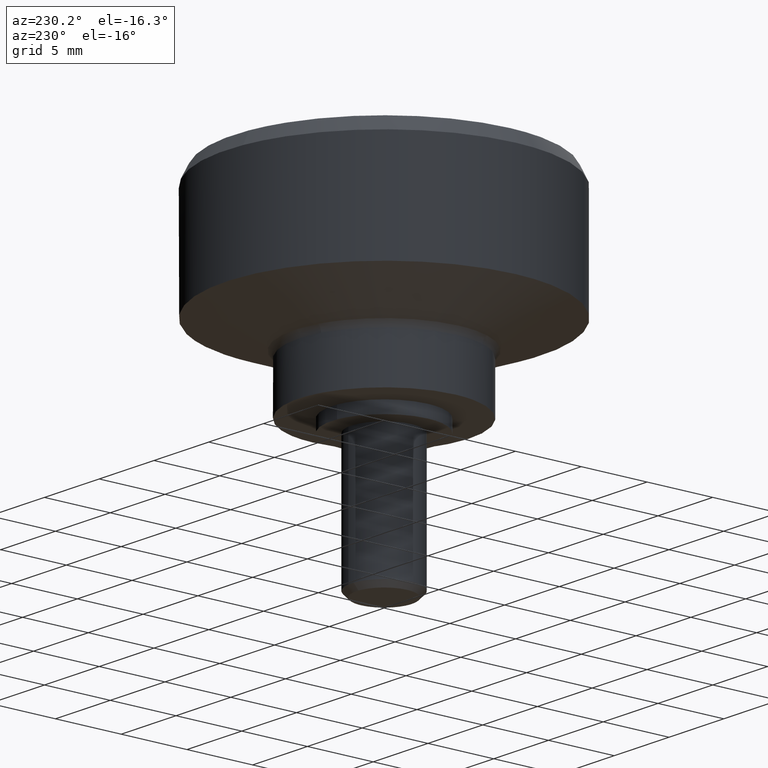
[diagram: clean part render]
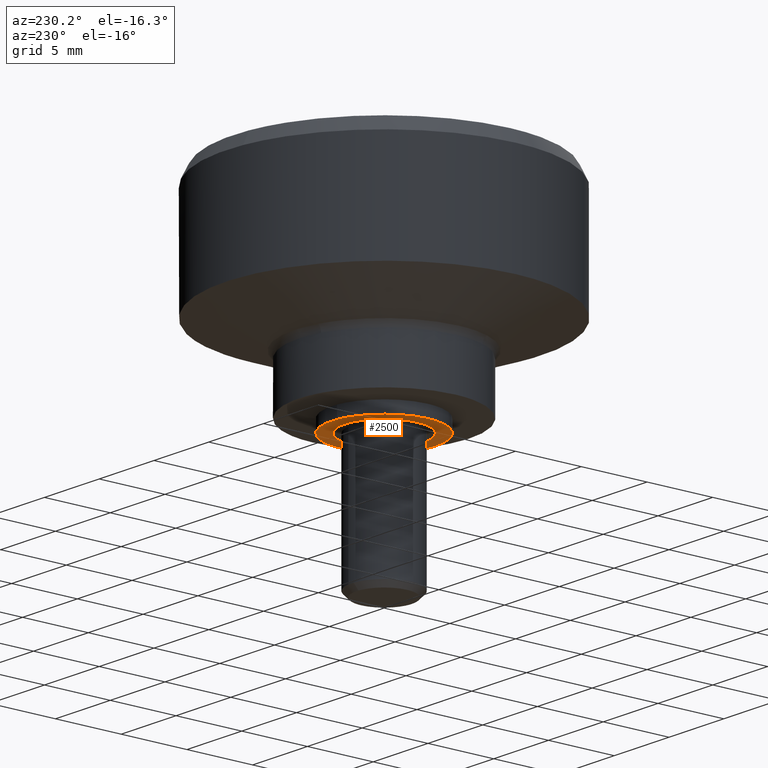
[diagram: same view with one face highlighted and labeled with its STEP entity id]
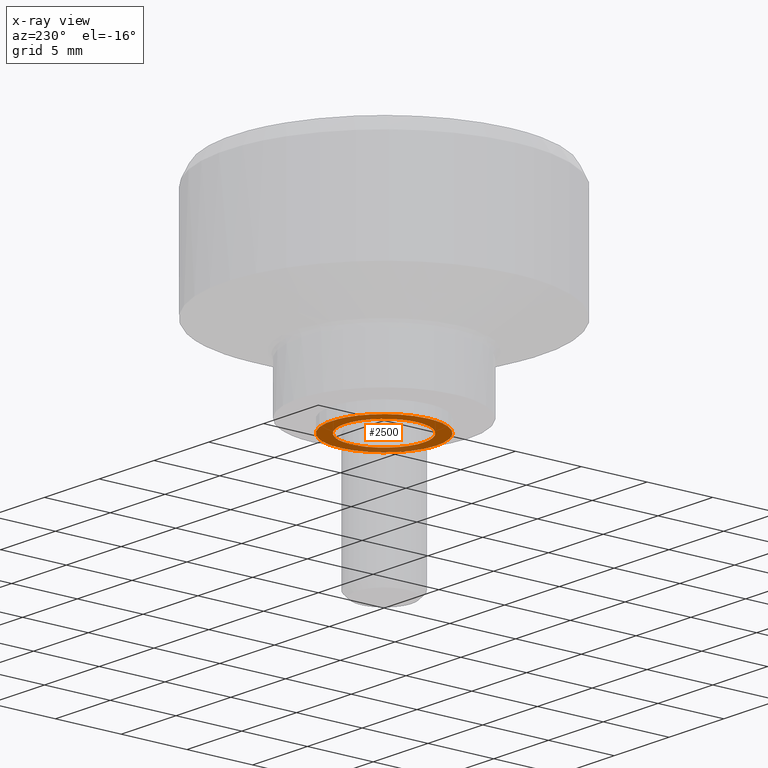
[diagram: x-ray of the same camera — body ghosted, the highlighted face saturated]
A machine part, auxiliary view. The second image highlights one B-rep face of the part: STEP entity #2500.
The next image is the same camera in x-ray: the body ghosted, the highlighted face saturated — about 19% of this face is hidden behind the body in this view.
In plain terms, the highlighted face is a freeform B-spline surface patch.
Its self-contained STEP definition (entity closure, byte-faithful):
#1082=CARTESIAN_POINT('',(-0.235376419651023,-2.990752069475420,3.747003E-016));
#1083=VERTEX_POINT('',#1082);
#1089=CARTESIAN_POINT('',(-3.0,0.0,0.0));
#1090=VERTEX_POINT('',#1089);
#1091=CARTESIAN_POINT('',(-3.0,0.0,0.0));
#1092=CARTESIAN_POINT('',(-3.000000000000001,-2.773173088786982,0.0));
#1093=CARTESIAN_POINT('',(-0.235376419651023,-2.990752069475420,3.747003E-016));
#1101=(BOUNDED_CURVE()B_SPLINE_CURVE(2,(#1091,#1092,#1093),.UNSPECIFIED.,.F.,.U.)B_SPLINE_CURVE_WITH_KNOTS((3,3),(0.0,0.236331400083561),.UNSPECIFIED.)CURVE()GEOMETRIC_REPRESENTATION_ITEM()RATIONAL_B_SPLINE_CURVE((1.0,0.723120542091343,0.969723563718129))REPRESENTATION_ITEM(''));
#1102=EDGE_CURVE('',#1090,#1083,#1101,.T.);
#1104=CARTESIAN_POINT('',(0.235376419651022,2.990752069475420,3.747003E-016));
#1105=VERTEX_POINT('',#1104);
#1106=CARTESIAN_POINT('',(0.235376419651022,2.990752069475420,3.747003E-016));
#1107=CARTESIAN_POINT('',(0.117869449464581,3.000000000000001,0.0));
#1108=CARTESIAN_POINT('',(0.0,3.0,0.0));
#1109=CARTESIAN_POINT('',(-3.0,3.0,0.0));
#1110=CARTESIAN_POINT('',(-3.0,0.0,0.0));
#1118=(BOUNDED_CURVE()B_SPLINE_CURVE(2,(#1106,#1107,#1108,#1109,#1110),.UNSPECIFIED.,.F.,.U.)B_SPLINE_CURVE_WITH_KNOTS((3,2,3),(0.736331400083561,0.750000000000000,1.0),.UNSPECIFIED.)CURVE()GEOMETRIC_REPRESENTATION_ITEM()RATIONAL_B_SPLINE_CURVE((0.969723563718129,0.983986239095204,1.0,0.707106781186548,1.0))REPRESENTATION_ITEM(''));
#1119=EDGE_CURVE('',#1105,#1090,#1118,.T.);
#1195=CARTESIAN_POINT('',(3.0,0.0,0.0));
#1196=VERTEX_POINT('',#1195);
#1197=CARTESIAN_POINT('',(3.0,0.0,0.0));
#1198=CARTESIAN_POINT('',(3.000000000000001,2.773173088787001,0.0));
#1199=CARTESIAN_POINT('',(0.235376419651022,2.990752069475420,3.747003E-016));
#1207=(BOUNDED_CURVE()B_SPLINE_CURVE(2,(#1197,#1198,#1199),.UNSPECIFIED.,.F.,.U.)B_SPLINE_CURVE_WITH_KNOTS((3,3),(0.500000000000000,0.736331400083563),.UNSPECIFIED.)CURVE()GEOMETRIC_REPRESENTATION_ITEM()RATIONAL_B_SPLINE_CURVE((1.0,0.723120542091342,0.969723563718132))REPRESENTATION_ITEM(''));
#1208=EDGE_CURVE('',#1196,#1105,#1207,.T.);
#1210=CARTESIAN_POINT('',(-0.235376419651023,-2.990752069475420,3.747003E-016));
#1211=CARTESIAN_POINT('',(-0.117869449464581,-3.000000000000000,0.0));
#1212=CARTESIAN_POINT('',(0.0,-3.0,0.0));
#1213=CARTESIAN_POINT('',(3.0,-3.0,0.0));
#1214=CARTESIAN_POINT('',(3.0,0.0,0.0));
#1222=(BOUNDED_CURVE()B_SPLINE_CURVE(2,(#1210,#1211,#1212,#1213,#1214),.UNSPECIFIED.,.F.,.U.)B_SPLINE_CURVE_WITH_KNOTS((3,2,3),(0.236331400083561,0.250000000000000,0.500000000000000),.UNSPECIFIED.)CURVE()GEOMETRIC_REPRESENTATION_ITEM()RATIONAL_B_SPLINE_CURVE((0.969723563718129,0.983986239095204,1.0,0.707106781186548,1.0))REPRESENTATION_ITEM(''));
#1223=EDGE_CURVE('',#1083,#1196,#1222,.T.);
#1285=CARTESIAN_POINT('',(0.244194158159243,-3.992539193686255,1.040834E-017));
#1286=VERTEX_POINT('',#1285);
#1292=CARTESIAN_POINT('',(4.0,0.0,0.0));
#1293=VERTEX_POINT('',#1292);
#1294=CARTESIAN_POINT('',(4.0,0.0,0.0));
#1295=CARTESIAN_POINT('',(4.0,-3.762824267585350,0.0));
#1296=CARTESIAN_POINT('',(0.244194158159243,-3.992539193686256,1.040834E-017));
#1304=(BOUNDED_CURVE()B_SPLINE_CURVE(2,(#1294,#1295,#1296),.UNSPECIFIED.,.F.,.U.)B_SPLINE_CURVE_WITH_KNOTS((3,3),(0.500000000000000,0.739332962240255),.UNSPECIFIED.)CURVE()GEOMETRIC_REPRESENTATION_ITEM()RATIONAL_B_SPLINE_CURVE((1.0,0.719603993285173,0.976072041669530))REPRESENTATION_ITEM(''));
#1305=EDGE_CURVE('',#1293,#1286,#1304,.T.);
#1307=CARTESIAN_POINT('',(-0.472131217953858,3.972038785435033,8.873213E-018));
#1308=VERTEX_POINT('',#1307);
#1309=CARTESIAN_POINT('',(-0.472131217953858,3.972038785435033,8.873213E-018));
#1310=CARTESIAN_POINT('',(-0.236893588032557,4.0,0.0));
#1311=CARTESIAN_POINT('',(0.0,4.0,0.0));
#1312=CARTESIAN_POINT('',(4.000000000000000,4.000000000000000,0.0));
#1313=CARTESIAN_POINT('',(4.0,0.0,0.0));
#1321=(BOUNDED_CURVE()B_SPLINE_CURVE(2,(#1309,#1310,#1311,#1312,#1313),.UNSPECIFIED.,.F.,.U.)B_SPLINE_CURVE_WITH_KNOTS((3,2,3),(0.229562716920267,0.250000000000000,0.500000000000000),.UNSPECIFIED.)CURVE()GEOMETRIC_REPRESENTATION_ITEM()RATIONAL_B_SPLINE_CURVE((0.956027231271462,0.976056233499901,1.0,0.707106781186548,1.0))REPRESENTATION_ITEM(''));
#1322=EDGE_CURVE('',#1308,#1293,#1321,.T.);
#1370=CARTESIAN_POINT('',(-4.0,0.0,0.0));
#1371=VERTEX_POINT('',#1370);
#1372=CARTESIAN_POINT('',(-4.0,0.0,0.0));
#1373=CARTESIAN_POINT('',(-4.000000000000001,3.552703256552524,0.0));
#1374=CARTESIAN_POINT('',(-0.472131217953858,3.972038785435033,8.873213E-018));
#1382=(BOUNDED_CURVE()B_SPLINE_CURVE(2,(#1372,#1373,#1374),.UNSPECIFIED.,.F.,.U.)B_SPLINE_CURVE_WITH_KNOTS((3,3),(0.0,0.229562716920267),.UNSPECIFIED.)CURVE()GEOMETRIC_REPRESENTATION_ITEM()RATIONAL_B_SPLINE_CURVE((1.0,0.731050547686647,0.956027231271462))REPRESENTATION_ITEM(''));
#1383=EDGE_CURVE('',#1371,#1308,#1382,.T.);
#1385=CARTESIAN_POINT('',(0.244194158159243,-3.992539193686255,1.040834E-017));
#1386=CARTESIAN_POINT('',(0.122211053214226,-4.0,0.0));
#1387=CARTESIAN_POINT('',(0.0,-4.0,0.0));
#1388=CARTESIAN_POINT('',(-4.000000000000000,-4.000000000000000,0.0));
#1389=CARTESIAN_POINT('',(-4.0,0.0,0.0));
#1397=(BOUNDED_CURVE()B_SPLINE_CURVE(2,(#1385,#1386,#1387,#1388,#1389),.UNSPECIFIED.,.F.,.U.)B_SPLINE_CURVE_WITH_KNOTS((3,2,3),(0.739332962240256,0.750000000000000,1.0),.UNSPECIFIED.)CURVE()GEOMETRIC_REPRESENTATION_ITEM()RATIONAL_B_SPLINE_CURVE((0.976072041669531,0.987502787901375,1.0,0.707106781186548,1.0))REPRESENTATION_ITEM(''));
#1398=EDGE_CURVE('',#1286,#1371,#1397,.T.);
#2483=CARTESIAN_POINT('',(-4.399599984494448,-4.399502628049835,0.0));
#2484=CARTESIAN_POINT('',(4.399600199071169,-4.399502628049835,0.0));
#2485=CARTESIAN_POINT('',(-4.399599984494448,4.399527232847198,0.0));
#2486=CARTESIAN_POINT('',(4.399600199071169,4.399527232847198,0.0));
#2487=B_SPLINE_SURFACE_WITH_KNOTS('',1,1,((#2483,#2485),(#2484,#2486)),.UNSPECIFIED.,.F.,.F.,.U.,(2,2),(2,2),(0.0,8.799200183565617),(0.0,8.799029860897033),.UNSPECIFIED.);
#2488=ORIENTED_EDGE('',*,*,#1383,.T.);
#2489=ORIENTED_EDGE('',*,*,#1322,.T.);
#2490=ORIENTED_EDGE('',*,*,#1305,.T.);
#2491=ORIENTED_EDGE('',*,*,#1398,.T.);
#2492=EDGE_LOOP('',(#2488,#2489,#2490,#2491));
#2493=FACE_OUTER_BOUND('',#2492,.T.);
#2494=ORIENTED_EDGE('',*,*,#1208,.T.);
#2495=ORIENTED_EDGE('',*,*,#1119,.T.);
#2496=ORIENTED_EDGE('',*,*,#1102,.T.);
#2497=ORIENTED_EDGE('',*,*,#1223,.T.);
#2498=EDGE_LOOP('',(#2494,#2495,#2496,#2497));
#2499=FACE_BOUND('',#2498,.T.);
#2500=ADVANCED_FACE('',(#2493,#2499),#2487,.F.);